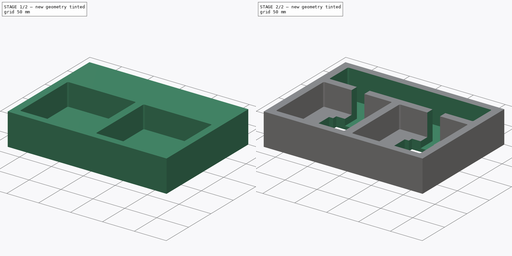
[diagram: build sequence overview — one tinted view per stage of 2, left to right]
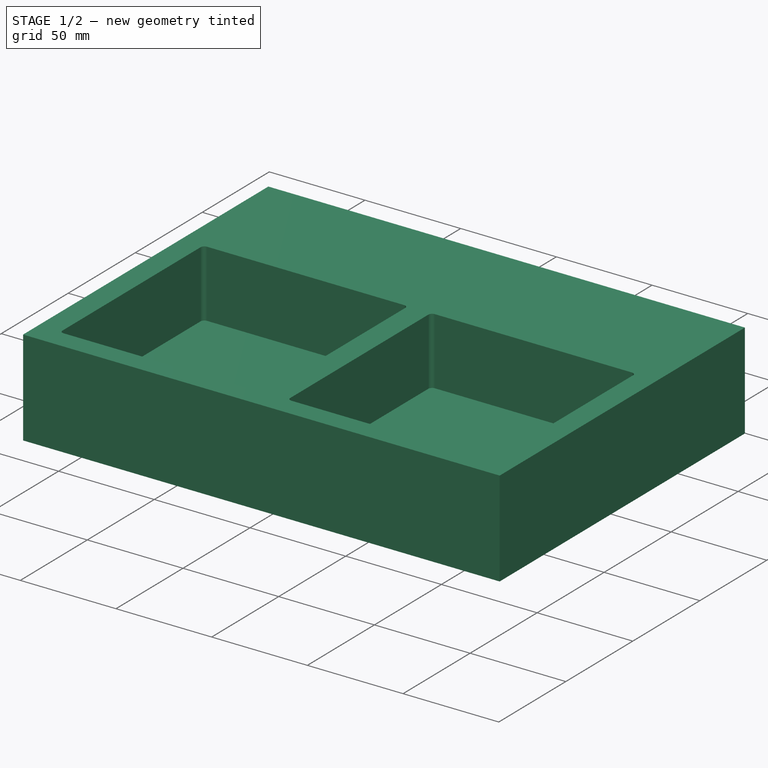
[diagram: stage 1 of 2 — iso view after this stage's code; geometry added in this stage tinted green]
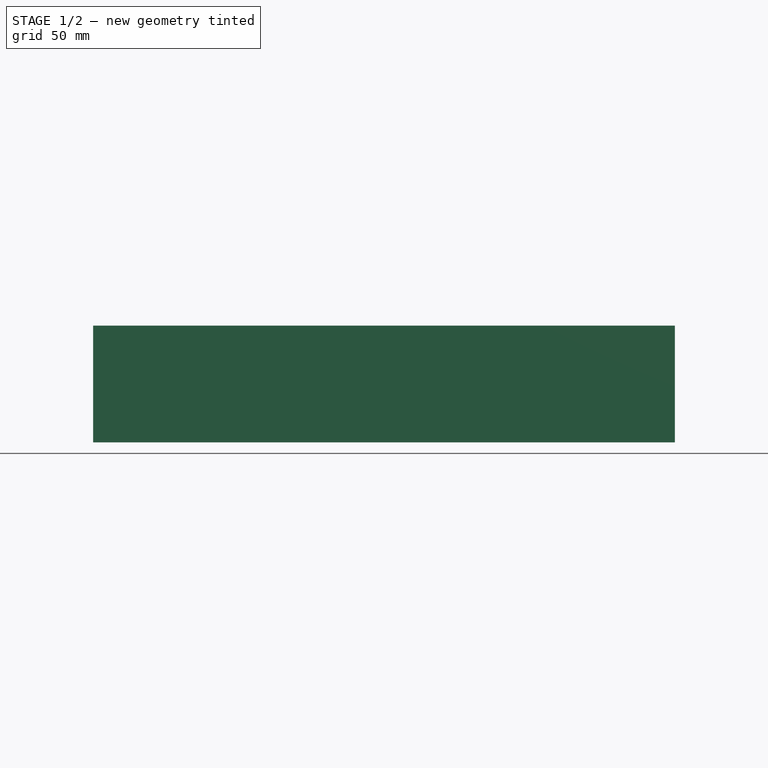
[diagram: stage 1 of 2 — front view after this stage's code; geometry added in this stage tinted green]
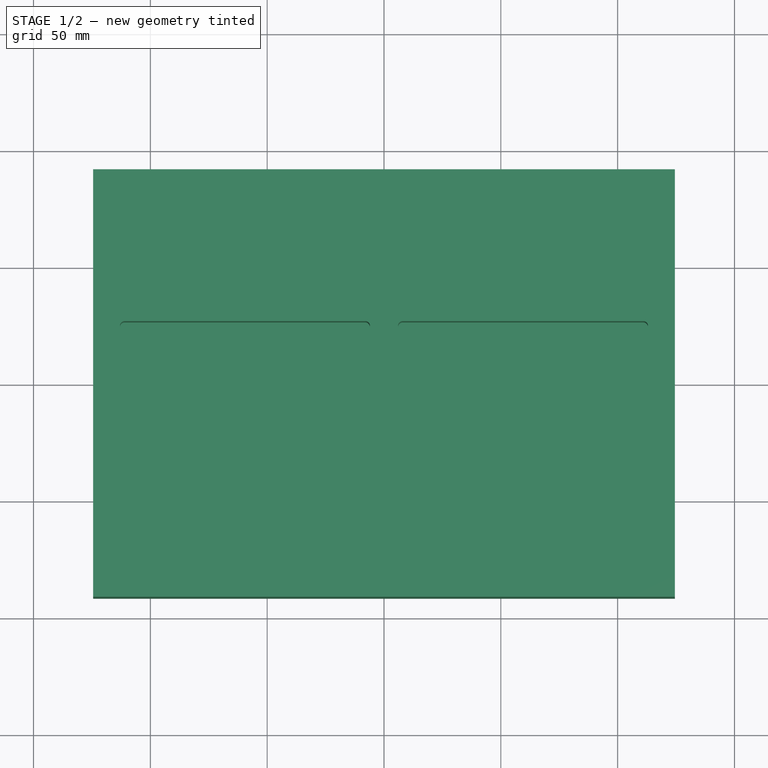
[diagram: stage 1 of 2 — top view after this stage's code; geometry added in this stage tinted green]
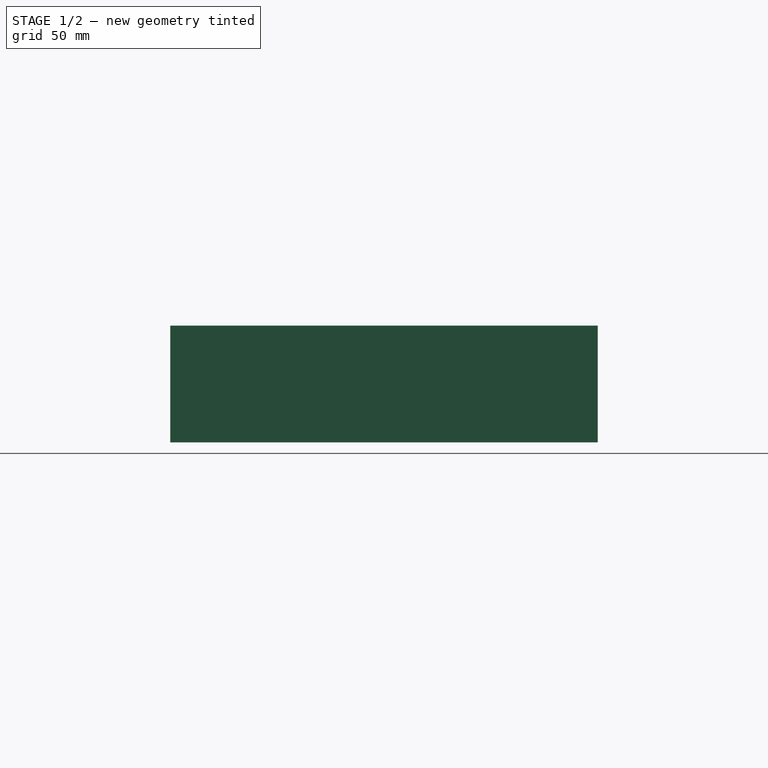
[diagram: stage 1 of 2 — right view after this stage's code; geometry added in this stage tinted green]
FCSTD DOCUMENT  (FreeCAD 0.20R29410 (Git))
Label: foam_insert
License: All rights reserved
LicenseURL: http://en.wikipedia.org/wiki/All_rights_reserved
objects: Sketcher::SketchObject×4, PartDesign::Pocket×3, PartDesign::Pad×1, PartDesign::Body×1
note: 13 computed .brp shape members not serialized (recipe doc carries the construction recipe); baked Part::Feature solids carry a one-line shape summary decoded from their .brp

FEATURE [Sketcher::SketchObject] Sketch
  FullyConstrained = true
  MapMode = 5
  Support = -> [XY_Plane]
  sketch-geometry (7):
    g0: LineSegment StartX=-124.5 StartY=91.5 StartZ=0 EndX=124.5 EndY=91.5 EndZ=0
    g1: LineSegment StartX=124.5 StartY=91.5 StartZ=0 EndX=124.5 EndY=-91.5 EndZ=0
    g2: LineSegment StartX=124.5 StartY=-91.5 StartZ=0 EndX=-124.5 EndY=-91.5 EndZ=0
    g3: LineSegment StartX=-124.5 StartY=-91.5 StartZ=0 EndX=-124.5 EndY=91.5 EndZ=0
    g4: LineSegment StartX=-124.5 StartY=91.5 StartZ=0 EndX=0 EndY=0 EndZ=0
    g5: LineSegment StartX=0 StartY=0 StartZ=0 EndX=124.5 EndY=91.5 EndZ=0
    g6: LineSegment StartX=0 StartY=0 StartZ=0 EndX=-124.5 EndY=-91.5 EndZ=0
  constraints (18):
    c: Coincident(g0,g1)
    c: Coincident(g1,g2)
    c: Coincident(g2,g3)
    c: Coincident(g3,g0)
    c: Horizontal(g0)
    c: Horizontal(g2)
    c: Vertical(g1)
    c: Vertical(g3)
    c: Coincident(g0,g4)
    c: Coincident(g4,g-1)
    c: Coincident(g4,g5)
    c: Coincident(g5,g0)
    c: Coincident(g4,g6)
    c: Coincident(g6,g2)
    c: Equal(g4,g6)
    c: Equal(g6,g5)
    c: DistanceX(g0,g0) = 249
    c: DistanceY(g3,g3) = 183
FEATURE [PartDesign::Pad] Pad
  Direction = (0,0,1)
  Length = 50
  Length2 = 10
  Profile = -> Sketch
  ReferenceAxis = -> Sketch [N_Axis]
  Reversed = true
  Type = 0
FEATURE [Sketcher::SketchObject] Sketch001
  FullyConstrained = true
  MapMode = 5
  Support = -> [XY_Plane]
  sketch-geometry (35):
    g0: LineSegment StartX=-111 StartY=26.5 StartZ=0 EndX=-8 EndY=26.5 EndZ=0
    g1: LineSegment StartX=-6 StartY=24.5 StartZ=0 EndX=-6 EndY=-78.5 EndZ=0
    g2: LineSegment StartX=-8 StartY=-80.5 StartZ=0 EndX=-111 EndY=-80.5 EndZ=0
    g3: LineSegment StartX=-113 StartY=-78.5 StartZ=0 EndX=-113 EndY=24.5 EndZ=0
    g4: LineSegment StartX=8 StartY=26.5 StartZ=0 EndX=111 EndY=26.5 EndZ=0
    g5: LineSegment StartX=113 StartY=24.5 StartZ=0 EndX=113 EndY=-78.5 EndZ=0
    g6: LineSegment StartX=111 StartY=-80.5 StartZ=0 EndX=8 EndY=-80.5 EndZ=0
    g7: LineSegment StartX=6 StartY=-78.5 StartZ=0 EndX=6 EndY=24.5 EndZ=0
    g8: ArcOfCircle CenterX=8 CenterY=24.5 CenterZ=0 NormalX=0 NormalY=0 NormalZ=1 AngleXU=0 Radius=2 StartAngle=1.5708 EndAngle=3.14159
    g9: ArcOfCircle CenterX=111 CenterY=24.5 CenterZ=0 NormalX=0 NormalY=0 NormalZ=1 AngleXU=0 Radius=2 StartAngle=0 EndAngle=1.5708
    g10: ArcOfCircle CenterX=111 CenterY=-78.5 CenterZ=0 NormalX=0 NormalY=0 NormalZ=1 AngleXU=0 Radius=2 StartAngle=4.71239 EndAngle=6.28319
    g11: ArcOfCircle CenterX=8 CenterY=-78.5 CenterZ=0 NormalX=0 NormalY=0 NormalZ=1 AngleXU=0 Radius=2 StartAngle=3.14159 EndAngle=4.71239
    g12: ArcOfCircle CenterX=-8 CenterY=-78.5 CenterZ=0 NormalX=0 NormalY=0 NormalZ=1 AngleXU=0 Radius=2 StartAngle=4.71239 EndAngle=6.28319
    g13: ArcOfCircle CenterX=-8 CenterY=24.5 CenterZ=0 NormalX=0 NormalY=0 NormalZ=1 AngleXU=0 Radius=2 StartAngle=2e-16 EndAngle=1.5708
    g14: ArcOfCircle CenterX=-111 CenterY=24.5 CenterZ=0 NormalX=0 NormalY=0 NormalZ=1 AngleXU=0 Radius=2 StartAngle=1.5708 EndAngle=3.14159
    g15: ArcOfCircle CenterX=-111 CenterY=-78.5 CenterZ=0 NormalX=0 NormalY=0 NormalZ=1 AngleXU=0 Radius=2 StartAngle=3.14159 EndAngle=4.71239
    g16: LineSegment StartX=-6 StartY=24.5 StartZ=0 EndX=0 EndY=0 EndZ=0
    g17: LineSegment StartX=0 StartY=0 StartZ=0 EndX=6 EndY=24.5 EndZ=0
    g18: LineSegment StartX=-6 StartY=-78.5 StartZ=0 EndX=0 EndY=0 EndZ=0
    g19: LineSegment StartX=0 StartY=0 StartZ=0 EndX=6 EndY=-78.5 EndZ=0
    g20: ArcOfCircle CenterX=-111 CenterY=78.5 CenterZ=0 NormalX=0 NormalY=0 NormalZ=1 AngleXU=0 Radius=2 StartAngle=1.5708 EndAngle=3.14159
    g21: LineSegment StartX=-111 StartY=80.5 StartZ=0 EndX=111 EndY=80.5 EndZ=0
    g22: ArcOfCircle CenterX=111 CenterY=78.5 CenterZ=0 NormalX=0 NormalY=0 NormalZ=1 AngleXU=0 Radius=2 StartAngle=3.5e-15 EndAngle=1.5708
    g23: LineSegment StartX=113 StartY=78.5 StartZ=0 EndX=113 EndY=40.5 EndZ=0
    g24: ArcOfCircle CenterX=111 CenterY=40.5 CenterZ=0 NormalX=0 NormalY=0 NormalZ=1 AngleXU=0 Radius=2 StartAngle=4.71239 EndAngle=6.28319
    g25: LineSegment StartX=111 StartY=38.5 StartZ=0 EndX=-111 EndY=38.5 EndZ=0
    g26: ArcOfCircle CenterX=-111 CenterY=40.5 CenterZ=0 NormalX=0 NormalY=0 NormalZ=1 AngleXU=0 Radius=2 StartAngle=3.14159 EndAngle=4.71239
    g27: LineSegment StartX=-113 StartY=40.5 StartZ=0 EndX=-113 EndY=78.5 EndZ=0
    g28: GeomPoint X=-113 Y=80.5 Z=0
    g29: GeomPoint X=113 Y=38.5 Z=0
    g30: LineSegment StartX=-113 StartY=40.5 StartZ=0 EndX=-113 EndY=24.5 EndZ=0
    g31: LineSegment StartX=113 StartY=40.5 StartZ=0 EndX=113 EndY=24.5 EndZ=0
    g32: LineSegment StartX=-8 StartY=-80.5 StartZ=0 EndX=8 EndY=-80.5 EndZ=0
    g33: LineSegment StartX=0 StartY=80.5 StartZ=0 EndX=0 EndY=0 EndZ=0
    g34: LineSegment StartX=0 StartY=-80.5 StartZ=0 EndX=0 EndY=0 EndZ=0
  constraints (84):
    c: Horizontal(g0)
    c: Horizontal(g2)
    c: Vertical(g1)
    c: Vertical(g3)
    c: Horizontal(g4)
    c: Horizontal(g6)
    c: Vertical(g5)
    c: Vertical(g7)
    c: Equal(g6,g7)
    c: Equal(g7,g2)
    c: Equal(g2,g3)
    c: Tangent(g4,g8) = 1.5708
    c: Tangent(g7,g8) = 1.5708
    c: Tangent(g4,g9) = 1.5708
    c: Tangent(g5,g9) = 1.5708
    c: Tangent(g5,g10) = 1.5708
    c: Tangent(g6,g10) = 1.5708
    c: Tangent(g6,g11) = 1.5708
    c: Tangent(g7,g11) = 1.5708
    c: Tangent(g1,g12) = 1.5708
    c: Tangent(g2,g12) = 1.5708
    c: Tangent(g0,g13) = 1.5708
    c: Tangent(g1,g13) = 1.5708
    c: Tangent(g0,g14) = 1.5708
    c: Tangent(g3,g14) = 1.5708
    c: Tangent(g2,g15) = 1.5708
    c: Tangent(g3,g15) = 1.5708
    c: Equal(g14,g13)
    c: Equal(g13,g12)
    c: Equal(g12,g15)
    c: Equal(g8,g11)
    c: Equal(g11,g10)
    c: Equal(g10,g9)
    c: Equal(g8,g13)
    c: Radius(g9) = 2
    c: DistanceY(g6,g4) = 107
    c: Coincident(g1,g16)
    c: Coincident(g16,g-1)
    c: Coincident(g16,g17)
    c: Coincident(g17,g7)
    c: Coincident(g1,g18)
    c: Coincident(g18,g16)
    c: Coincident(g18,g19)
    c: Coincident(g19,g7)
    c: Equal(g18,g19)
    c: Equal(g16,g17)
    c: Tangent(g20,g21) = 1.5708
    c: Tangent(g21,g22) = 1.5708
    c: Tangent(g22,g23) = 1.5708
    c: Tangent(g23,g24) = 1.5708
    c: Tangent(g24,g25) = 1.5708
    c: Tangent(g25,g26) = 1.5708
    c: Tangent(g26,g27) = 1.5708
    c: Tangent(g27,g20) = 1.5708
    c: Horizontal(g21)
    c: Horizontal(g25)
    c: Vertical(g23)
    c: Vertical(g27)
    c: Equal(g24,g26)
    c: PointOnObject(g28,g21)
    c: PointOnObject(g28,g27)
    c: PointOnObject(g29,g23)
    c: PointOnObject(g29,g25)
    c: Equal(g22,g20)
    c: Equal(g24,g9)
    c: Coincident(g30,g26)
    c: Coincident(g30,g3)
    c: Vertical(g30)
    c: Coincident(g31,g23)
    c: Coincident(g31,g5)
    c: Tangent(g31,g9)
    c: Coincident(g32,g2)
    c: Coincident(g32,g6)
    c: Equal(g32,g30)
    c: DistanceX(g1,g7) = 12
    c: PointOnObject(g33,g21)
    c: Coincident(g33,g16)
    c: PointOnObject(g34,g32)
    c: Coincident(g34,g16)
    c: Equal(g34,g33)
    c: Vertical(g34)
    c: Vertical(g33)
    c: DistanceY(g25,g20) = 42
    c: Equal(g20,g26)
FEATURE [PartDesign::Pocket] Pocket
  BaseFeature = -> Pad
  Direction = (0,0,-1)
  Length = 35
  Length2 = 5
  Profile = -> Sketch001
  ReferenceAxis = -> Sketch001 [N_Axis]
  Type = 0
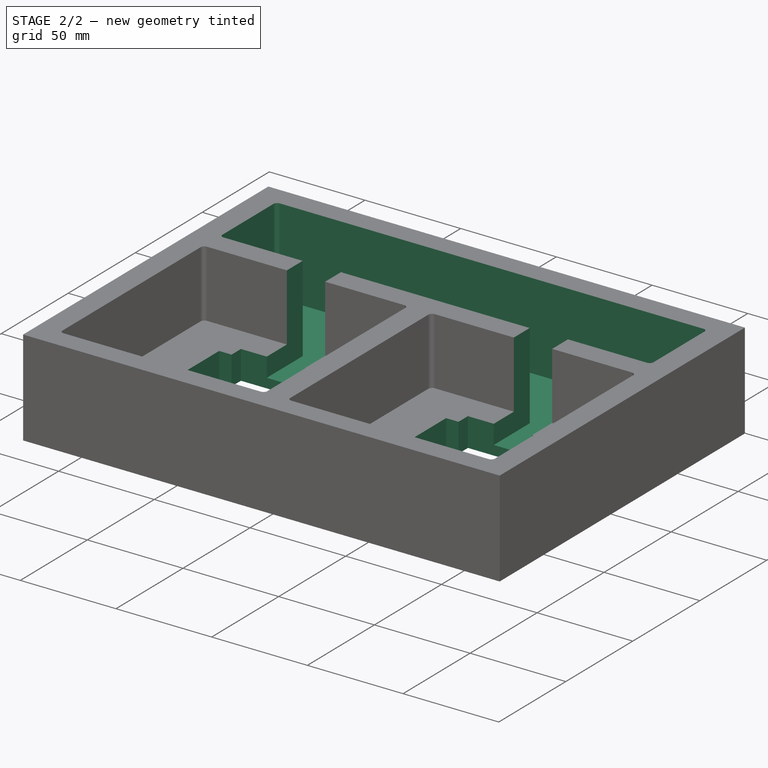
[diagram: stage 2 of 2 — iso view after this stage's code; geometry added in this stage tinted green]
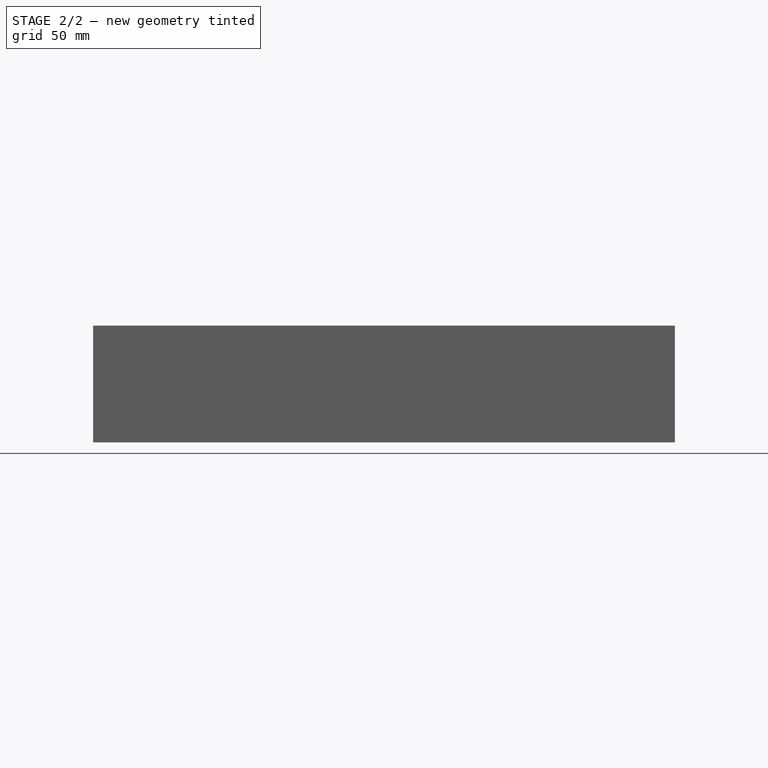
[diagram: stage 2 of 2 — front view after this stage's code; geometry added in this stage tinted green]
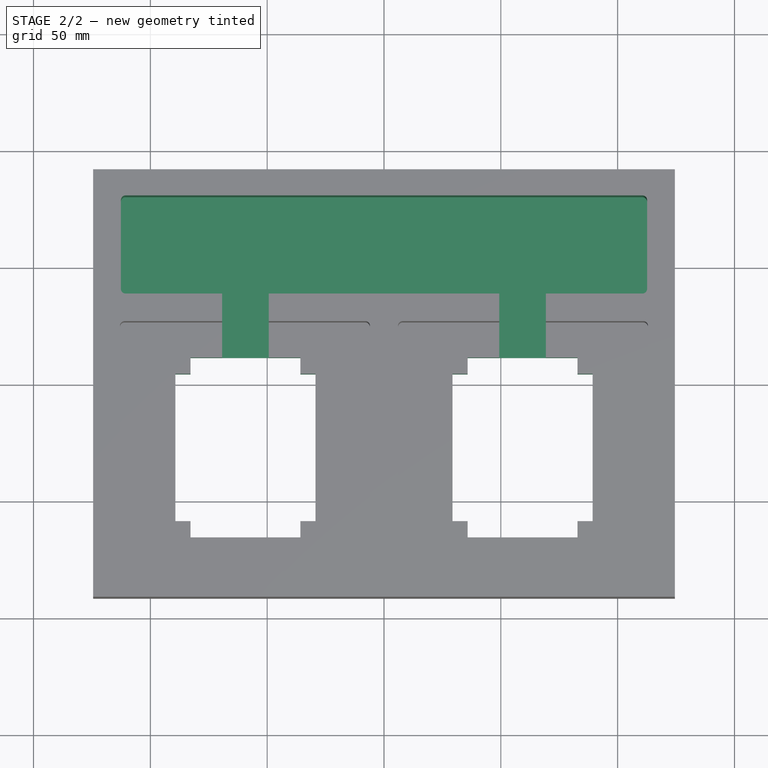
[diagram: stage 2 of 2 — top view after this stage's code; geometry added in this stage tinted green]
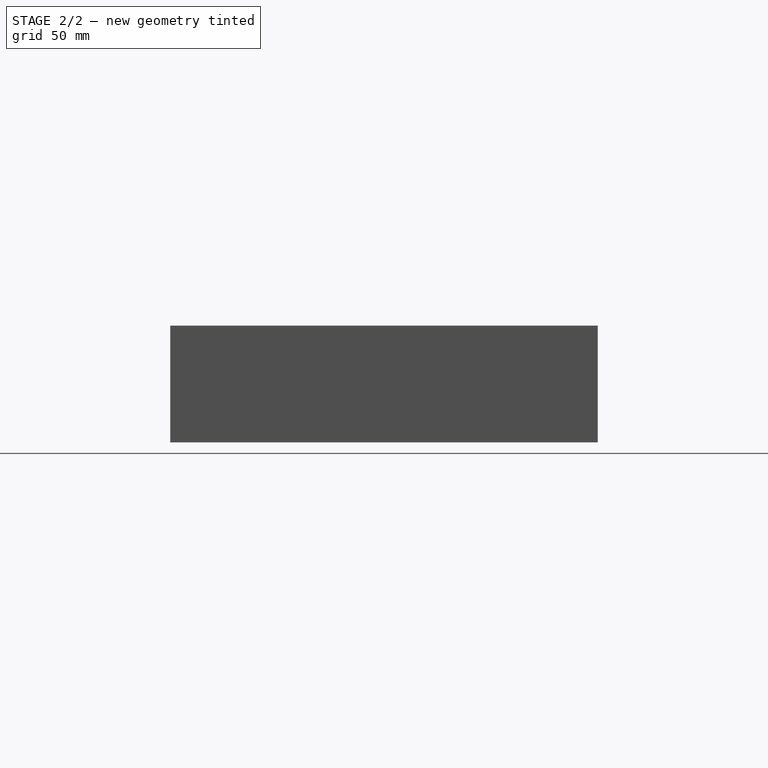
[diagram: stage 2 of 2 — right view after this stage's code; geometry added in this stage tinted green]
FEATURE [Sketcher::SketchObject] Sketch002
  FullyConstrained = true
  MapMode = 5
  Support = -> [XY_Plane]
  sketch-geometry (65):
    g0: LineSegment StartX=-110.6 StartY=26.3 StartZ=0 EndX=-8 EndY=26.3 EndZ=0
    g1: LineSegment StartX=-6 StartY=24.3 StartZ=0 EndX=-6 EndY=-78.3 EndZ=0
    g2: LineSegment StartX=-8 StartY=-80.3 StartZ=0 EndX=-110.6 EndY=-80.3 EndZ=0
    g3: LineSegment StartX=-112.6 StartY=-78.3 StartZ=0 EndX=-112.6 EndY=24.3 EndZ=0
    g4: LineSegment StartX=8 StartY=26.3 StartZ=0 EndX=110.6 EndY=26.3 EndZ=0
    g5: LineSegment StartX=112.6 StartY=24.3 StartZ=0 EndX=112.6 EndY=-78.3 EndZ=0
    g6: LineSegment StartX=110.6 StartY=-80.3 StartZ=0 EndX=8 EndY=-80.3 EndZ=0
    g7: LineSegment StartX=6 StartY=-78.3 StartZ=0 EndX=6 EndY=24.3 EndZ=0
    g8: ArcOfCircle CenterX=8 CenterY=24.3 CenterZ=0 NormalX=0 NormalY=0 NormalZ=1 AngleXU=0 Radius=2 StartAngle=1.5708 EndAngle=3.14159
    g9: ArcOfCircle CenterX=110.6 CenterY=24.3 CenterZ=0 NormalX=0 NormalY=0 NormalZ=1 AngleXU=0 Radius=2 StartAngle=5e-16 EndAngle=1.5708
    g10: ArcOfCircle CenterX=110.6 CenterY=-78.3 CenterZ=0 NormalX=0 NormalY=0 NormalZ=1 AngleXU=0 Radius=2 StartAngle=4.71239 EndAngle=6.28319
    g11: ArcOfCircle CenterX=8 CenterY=-78.3 CenterZ=0 NormalX=0 NormalY=0 NormalZ=1 AngleXU=0 Radius=2 StartAngle=3.14159 EndAngle=4.71239
    g12: ArcOfCircle CenterX=-8 CenterY=-78.3 CenterZ=0 NormalX=0 NormalY=0 NormalZ=1 AngleXU=0 Radius=2 StartAngle=4.71239 EndAngle=6.28319
    g13: ArcOfCircle CenterX=-8 CenterY=24.3 CenterZ=0 NormalX=0 NormalY=0 NormalZ=1 AngleXU=0 Radius=2 StartAngle=2e-16 EndAngle=1.5708
    g14: ArcOfCircle CenterX=-110.6 CenterY=24.3 CenterZ=0 NormalX=0 NormalY=0 NormalZ=1 AngleXU=0 Radius=2 StartAngle=1.5708 EndAngle=3.14159
    g15: ArcOfCircle CenterX=-110.6 CenterY=-78.3 CenterZ=0 NormalX=0 NormalY=0 NormalZ=1 AngleXU=0 Radius=2 StartAngle=3.14159 EndAngle=4.71239
    g16: LineSegment StartX=-6 StartY=24.3 StartZ=0 EndX=0 EndY=0 EndZ=0
    g17: LineSegment StartX=0 StartY=0 StartZ=0 EndX=6 EndY=24.3 EndZ=0
    g18: LineSegment StartX=-6 StartY=-78.3 StartZ=0 EndX=0 EndY=0 EndZ=0
    g19: LineSegment StartX=0 StartY=0 StartZ=0 EndX=6 EndY=-78.3 EndZ=0
    g20: ArcOfCircle CenterX=-110.6 CenterY=78.3 CenterZ=0 NormalX=0 NormalY=0 NormalZ=1 AngleXU=0 Radius=2 StartAngle=1.5708 EndAngle=3.14159
    g21: LineSegment StartX=-110.6 StartY=80.3 StartZ=0 EndX=110.6 EndY=80.3 EndZ=0
    g22: ArcOfCircle CenterX=110.6 CenterY=78.3 CenterZ=0 NormalX=0 NormalY=0 NormalZ=1 AngleXU=0 Radius=2 StartAngle=2.3e-15 EndAngle=1.5708
    g23: LineSegment StartX=112.6 StartY=78.3 StartZ=0 EndX=112.6 EndY=40.3 EndZ=0
    g24: ArcOfCircle CenterX=110.6 CenterY=40.3 CenterZ=0 NormalX=0 NormalY=0 NormalZ=1 AngleXU=0 Radius=2 StartAngle=4.71239 EndAngle=6.28319
    g25: LineSegment StartX=110.6 StartY=38.3 StartZ=0 EndX=-110.6 EndY=38.3 EndZ=0
    g26: ArcOfCircle CenterX=-110.6 CenterY=40.3 CenterZ=0 NormalX=0 NormalY=0 NormalZ=1 AngleXU=0 Radius=2 StartAngle=3.14159 EndAngle=4.71239
    g27: LineSegment StartX=-112.6 StartY=40.3 StartZ=0 EndX=-112.6 EndY=78.3 EndZ=0
    g28: GeomPoint X=-112.6 Y=80.3 Z=0
    g29: GeomPoint X=112.6 Y=38.3 Z=0
    g30: LineSegment StartX=-112.6 StartY=40.3 StartZ=0 EndX=-112.6 EndY=24.3 EndZ=0
    g31: LineSegment StartX=112.6 StartY=40.3 StartZ=0 EndX=112.6 EndY=24.3 EndZ=0
    g32: LineSegment StartX=-8 StartY=-80.3 StartZ=0 EndX=8 EndY=-80.3 EndZ=0
    g33: LineSegment StartX=0 StartY=80.3 StartZ=0 EndX=0 EndY=0 EndZ=0
    g34: LineSegment StartX=0 StartY=-80.3 StartZ=0 EndX=0 EndY=0 EndZ=0
    g35: LineSegment StartX=-82.8 StartY=4.5 StartZ=0 EndX=-89.3 EndY=4.5 EndZ=0
    g36: LineSegment StartX=-89.3 StartY=4.5 StartZ=0 EndX=-89.3 EndY=-58.5 EndZ=0
    g37: LineSegment StartX=-29.3 StartY=-58.5 StartZ=0 EndX=-29.3 EndY=4.5 EndZ=0
    g38: LineSegment StartX=-29.3 StartY=4.5 StartZ=0 EndX=-35.8 EndY=4.5 EndZ=0
    g39: LineSegment StartX=35.8 StartY=4.5 StartZ=0 EndX=29.3 EndY=4.5 EndZ=0
    g40: LineSegment StartX=29.3 StartY=4.5 StartZ=0 EndX=29.3 EndY=-58.5 EndZ=0
    g41: LineSegment StartX=89.3 StartY=-58.5 StartZ=0 EndX=89.3 EndY=4.5 EndZ=0
    g42: LineSegment StartX=89.3 StartY=4.5 StartZ=0 EndX=82.8 EndY=4.5 EndZ=0
    g43: LineSegment StartX=-29.3 StartY=4.5 StartZ=0 EndX=-8 EndY=24.3 EndZ=0
    g44: LineSegment StartX=-29.3 StartY=-58.5 StartZ=0 EndX=-8 EndY=-78.3 EndZ=0
    g45: LineSegment StartX=-89.3 StartY=-58.5 StartZ=0 EndX=-82.8 EndY=-58.5 EndZ=0
    g46: LineSegment StartX=-82.8 StartY=-58.5 StartZ=0 EndX=-82.8 EndY=-65.5 EndZ=0
    g47: LineSegment StartX=-82.8 StartY=-65.5 StartZ=0 EndX=-35.8 EndY=-65.5 EndZ=0
    g48: LineSegment StartX=-35.8 StartY=-65.5 StartZ=0 EndX=-35.8 EndY=-58.5 EndZ=0
    g49: LineSegment StartX=-35.8 StartY=-58.5 StartZ=0 EndX=-29.3 EndY=-58.5 EndZ=0
    g50: LineSegment StartX=29.3 StartY=-58.5 StartZ=0 EndX=35.8 EndY=-58.5 EndZ=0
    g51: LineSegment StartX=35.8 StartY=-58.5 StartZ=0 EndX=35.8 EndY=-65.5 EndZ=0
    g52: LineSegment StartX=35.8 StartY=-65.5 StartZ=0 EndX=82.8 EndY=-65.5 EndZ=0
    g53: LineSegment StartX=82.8 StartY=-65.5 StartZ=0 EndX=82.8 EndY=-58.5 EndZ=0
    g54: LineSegment StartX=82.8 StartY=-58.5 StartZ=0 EndX=89.3 EndY=-58.5 EndZ=0
    g55: LineSegment StartX=-82.8 StartY=4.5 StartZ=0 EndX=-82.8 EndY=11.5 EndZ=0
    g56: LineSegment StartX=-82.8 StartY=11.5 StartZ=0 EndX=-35.8 EndY=11.5 EndZ=0
    g57: LineSegment StartX=-35.8 StartY=11.5 StartZ=0 EndX=-35.8 EndY=4.5 EndZ=0
    g58: LineSegment StartX=35.8 StartY=4.5 StartZ=0 EndX=35.8 EndY=11.5 EndZ=0
    g59: LineSegment StartX=35.8 StartY=11.5 StartZ=0 EndX=82.8 EndY=11.5 EndZ=0
    g60: LineSegment StartX=82.8 StartY=11.5 StartZ=0 EndX=82.8 EndY=4.5 EndZ=0
    g61: LineSegment StartX=-110.6 StartY=24.3 StartZ=0 EndX=-89.3 EndY=4.5 EndZ=0
    g62: LineSegment StartX=8 StartY=-78.3 StartZ=0 EndX=29.3 EndY=-58.5 EndZ=0
    g63: LineSegment StartX=29.3 StartY=4.5 StartZ=0 EndX=8 EndY=24.3 EndZ=0
    g64: LineSegment StartX=89.3 StartY=4.5 StartZ=0 EndX=110.6 EndY=24.3 EndZ=0
  constraints (168):
    c: Horizontal(g0)
    c: Horizontal(g2)
    c: Vertical(g1)
    c: Vertical(g3)
    c: Horizontal(g4)
    c: Horizontal(g6)
    c: Vertical(g5)
    c: Vertical(g7)
    c: Equal(g6,g7)
    c: Equal(g7,g2)
    c: Equal(g2,g3)
    c: Tangent(g4,g8) = 1.5708
    c: Tangent(g7,g8) = 1.5708
    c: Tangent(g4,g9) = 1.5708
    c: Tangent(g5,g9) = 1.5708
    c: Tangent(g5,g10) = 1.5708
    c: Tangent(g6,g10) = 1.5708
    c: Tangent(g6,g11) = 1.5708
    c: Tangent(g7,g11) = 1.5708
    c: Tangent(g1,g12) = 1.5708
    c: Tangent(g2,g12) = 1.5708
    c: Tangent(g0,g13) = 1.5708
    c: Tangent(g1,g13) = 1.5708
    c: Tangent(g0,g14) = 1.5708
    c: Tangent(g3,g14) = 1.5708
    c: Tangent(g2,g15) = 1.5708
    c: Tangent(g3,g15) = 1.5708
    c: Equal(g14,g13)
    c: Equal(g13,g12)
    c: Equal(g12,g15)
    c: Equal(g8,g11)
    c: Equal(g11,g10)
    c: Equal(g10,g9)
    c: Equal(g8,g13)
    c: Radius(g9) = 2
    c: DistanceY(g6,g4) = 106.6
    c: Coincident(g1,g16)
    c: Coincident(g16,g-1)
    c: Coincident(g16,g17)
    c: Coincident(g17,g7)
    c: Coincident(g1,g18)
    c: Coincident(g18,g16)
    c: Coincident(g18,g19)
    c: Coincident(g19,g7)
    c: Equal(g18,g19)
    c: Equal(g16,g17)
    c: Tangent(g20,g21) = 1.5708
    c: Tangent(g21,g22) = 1.5708
    c: Tangent(g22,g23) = 1.5708
    c: Tangent(g23,g24) = 1.5708
    c: Tangent(g24,g25) = 1.5708
    c: Tangent(g25,g26) = 1.5708
    c: Tangent(g26,g27) = 1.5708
    c: Tangent(g27,g20) = 1.5708
    c: Horizontal(g21)
    c: Horizontal(g25)
    c: Vertical(g23)
    c: Vertical(g27)
    c: Equal(g24,g26)
    c: PointOnObject(g28,g21)
    c: PointOnObject(g28,g27)
    c: PointOnObject(g29,g23)
    c: PointOnObject(g29,g25)
    c: Equal(g22,g20)
    c: Equal(g24,g9)
    c: Coincident(g30,g26)
    c: Coincident(g30,g3)
    c: Vertical(g30)
    c: Coincident(g31,g23)
    c: Coincident(g31,g5)
    c: Tangent(g31,g9)
    c: Coincident(g32,g2)
    c: Coincident(g32,g6)
    c: Equal(g32,g30)
    c: DistanceX(g1,g7) = 12
    c: PointOnObject(g33,g21)
    c: Coincident(g33,g16)
    c: PointOnObject(g34,g32)
    c: Coincident(g34,g16)
    c: Equal(g34,g33)
    c: Vertical(g34)
    c: Vertical(g33)
    c: DistanceY(g25,g20) = 42
    c: Horizontal(g35)
    c: Coincident(g35,g36)
    c: Vertical(g36)
    c: Coincident(g36,g45)
    c: Coincident(g49,g37)
    c: Vertical(g37)
    c: Coincident(g37,g38)
    c: Horizontal(g38)
    c: Horizontal(g39)
    c: Coincident(g39,g40)
    c: Vertical(g40)
    c: Coincident(g40,g50)
    c: Coincident(g54,g41)
    c: Vertical(g41)
    c: Coincident(g41,g42)
    c: Horizontal(g42)
    c: DistanceY(g41,g41) = 63
    c: Equal(g37,g41)
    c: DistanceX(g50,g54) = 60
    c: Equal(g39,g42)
    c: Equal(g42,g35)
    c: Equal(g35,g38)
    c: Coincident(g43,g37)
    c: Coincident(g43,g13)
    c: Coincident(g44,g49)
    c: Coincident(g44,g12)
    c: Equal(g44,g43)
    c: Equal(g20,g26)
    c: Coincident(g45,g46)
    c: Horizontal(g45)
    c: Coincident(g46,g47)
    c: Coincident(g47,g48)
    c: Horizontal(g47)
    c: Coincident(g48,g49)
    c: Horizontal(g49)
    c: Coincident(g50,g51)
    c: Horizontal(g50)
    c: Coincident(g51,g52)
    c: Coincident(g52,g53)
    c: Horizontal(g52)
    c: Coincident(g53,g54)
    c: Horizontal(g54)
    c: Vertical(g46)
    c: Vertical(g48)
    c: Vertical(g51)
    c: Vertical(g53)
    c: Equal(g51,g46)
    c: Equal(g45,g49)
    c: Equal(g49,g50)
    c: Equal(g50,g54)
    c: Equal(g40,g41)
    c: Equal(g37,g36)
    c: Equal(g47,g52)
    c: DistanceX(g47,g47) = 47
    c: DistanceY(g46,g46) = 7
    c: Coincident(g35,g55)
    c: Vertical(g55)
    c: Coincident(g55,g56)
    c: Horizontal(g56)
    c: Coincident(g56,g57)
    c: Coincident(g57,g38)
    c: Coincident(g39,g58)
    c: Vertical(g58)
    c: Coincident(g58,g59)
    c: Horizontal(g59)
    c: Coincident(g59,g60)
    c: Coincident(g60,g42)
    c: Vertical(g60)
    c: Vertical(g57)
    c: Equal(g38,g49)
    c: Equal(g58,g57)
    c: Equal(g57,g48)
    c: Equal(g46,g55)
    c: Equal(g53,g51)
    c: Coincident(g61,g14)
    c: Coincident(g61,g35)
    c: Coincident(g62,g11)
    c: Coincident(g62,g40)
    c: Coincident(g63,g39)
    c: Coincident(g63,g8)
    c: Coincident(g64,g9)
    c: Coincident(g64,g41)
    c: Equal(g62,g63)
    c: Equal(g63,g64)
    c: Equal(g43,g61)
FEATURE [PartDesign::Pocket] Pocket001
  BaseFeature = -> Pocket
  Direction = (0,0,-1)
  Length = 50
  Length2 = 5
  Profile = -> Sketch002
  ReferenceAxis = -> Sketch002 [N_Axis]
  Type = 0
FEATURE [Sketcher::SketchObject] Sketch003
  FullyConstrained = true
  MapMode = 5
  Support = -> [XY_Plane]
  sketch-geometry (66):
    g0: LineSegment StartX=-110.6 StartY=26.3 StartZ=0 EndX=-8 EndY=26.3 EndZ=0
    g1: LineSegment StartX=-6 StartY=24.3 StartZ=0 EndX=-6 EndY=-78.3 EndZ=0
    g2: LineSegment StartX=-8 StartY=-80.3 StartZ=0 EndX=-110.6 EndY=-80.3 EndZ=0
    g3: LineSegment StartX=-112.6 StartY=-78.3 StartZ=0 EndX=-112.6 EndY=24.3 EndZ=0
    g4: LineSegment StartX=8 StartY=26.3 StartZ=0 EndX=110.6 EndY=26.3 EndZ=0
    g5: LineSegment StartX=112.6 StartY=24.3 StartZ=0 EndX=112.6 EndY=-78.3 EndZ=0
    g6: LineSegment StartX=110.6 StartY=-80.3 StartZ=0 EndX=8 EndY=-80.3 EndZ=0
    g7: LineSegment StartX=6 StartY=-78.3 StartZ=0 EndX=6 EndY=24.3 EndZ=0
    g8: ArcOfCircle CenterX=8 CenterY=24.3 CenterZ=0 NormalX=0 NormalY=0 NormalZ=1 AngleXU=0 Radius=2 StartAngle=1.5708 EndAngle=3.14159
    g9: ArcOfCircle CenterX=110.6 CenterY=24.3 CenterZ=0 NormalX=0 NormalY=0 NormalZ=1 AngleXU=0 Radius=2 StartAngle=0 EndAngle=1.5708
    g10: ArcOfCircle CenterX=110.6 CenterY=-78.3 CenterZ=0 NormalX=0 NormalY=0 NormalZ=1 AngleXU=0 Radius=2 StartAngle=4.71239 EndAngle=6.28319
    g11: ArcOfCircle CenterX=8 CenterY=-78.3 CenterZ=0 NormalX=0 NormalY=0 NormalZ=1 AngleXU=0 Radius=2 StartAngle=3.14159 EndAngle=4.71239
    g12: ArcOfCircle CenterX=-8 CenterY=-78.3 CenterZ=0 NormalX=0 NormalY=0 NormalZ=1 AngleXU=0 Radius=2 StartAngle=4.71239 EndAngle=6.28319
    g13: ArcOfCircle CenterX=-8 CenterY=24.3 CenterZ=0 NormalX=0 NormalY=0 NormalZ=1 AngleXU=0 Radius=2 StartAngle=-9e-16 EndAngle=1.5708
    g14: ArcOfCircle CenterX=-110.6 CenterY=24.3 CenterZ=0 NormalX=0 NormalY=0 NormalZ=1 AngleXU=0 Radius=2 StartAngle=1.5708 EndAngle=3.14159
    g15: ArcOfCircle CenterX=-110.6 CenterY=-78.3 CenterZ=0 NormalX=0 NormalY=0 NormalZ=1 AngleXU=0 Radius=2 StartAngle=3.14159 EndAngle=4.71239
    g16: LineSegment StartX=-6 StartY=24.3 StartZ=0 EndX=0 EndY=0 EndZ=0
    g17: LineSegment StartX=0 StartY=0 StartZ=0 EndX=6 EndY=24.3 EndZ=0
    g18: LineSegment StartX=-6 StartY=-78.3 StartZ=0 EndX=0 EndY=0 EndZ=0
    g19: LineSegment StartX=0 StartY=0 StartZ=0 EndX=6 EndY=-78.3 EndZ=0
    g20: ArcOfCircle CenterX=-110.6 CenterY=78.3 CenterZ=0 NormalX=0 NormalY=0 NormalZ=1 AngleXU=0 Radius=2 StartAngle=1.5708 EndAngle=3.14159
    g21: LineSegment StartX=-110.6 StartY=80.3 StartZ=0 EndX=110.6 EndY=80.3 EndZ=0
    g22: ArcOfCircle CenterX=110.6 CenterY=78.3 CenterZ=0 NormalX=0 NormalY=0 NormalZ=1 AngleXU=0 Radius=2 StartAngle=2.5e-15 EndAngle=1.5708
    g23: LineSegment StartX=112.6 StartY=78.3 StartZ=0 EndX=112.6 EndY=40.3 EndZ=0
    g24: ArcOfCircle CenterX=110.6 CenterY=40.3 CenterZ=0 NormalX=0 NormalY=0 NormalZ=1 AngleXU=0 Radius=2 StartAngle=4.71239 EndAngle=6.28319
    g25: LineSegment StartX=110.6 StartY=38.3 StartZ=0 EndX=-110.6 EndY=38.3 EndZ=0
    g26: ArcOfCircle CenterX=-110.6 CenterY=40.3 CenterZ=0 NormalX=0 NormalY=0 NormalZ=1 AngleXU=0 Radius=2 StartAngle=3.14159 EndAngle=4.71239
    g27: LineSegment StartX=-112.6 StartY=40.3 StartZ=0 EndX=-112.6 EndY=78.3 EndZ=0
    g28: GeomPoint X=-112.6 Y=80.3 Z=0
    g29: GeomPoint X=112.6 Y=38.3 Z=0
    g30: LineSegment StartX=-112.6 StartY=40.3 StartZ=0 EndX=-112.6 EndY=24.3 EndZ=0
    g31: LineSegment StartX=112.6 StartY=40.3 StartZ=0 EndX=112.6 EndY=24.3 EndZ=0
    g32: LineSegment StartX=-8 StartY=-80.3 StartZ=0 EndX=8 EndY=-80.3 EndZ=0
    g33: LineSegment StartX=0 StartY=80.3 StartZ=0 EndX=0 EndY=0 EndZ=0
    g34: LineSegment StartX=0 StartY=-80.3 StartZ=0 EndX=0 EndY=0 EndZ=0
    g35: LineSegment StartX=-110.6 StartY=38.3 StartZ=0 EndX=-69.3 EndY=38.3 EndZ=0
    g36: LineSegment StartX=-69.3 StartY=38.3 StartZ=0 EndX=-69.3 EndY=4.5 EndZ=0
    g37: LineSegment StartX=-69.3 StartY=4.5 StartZ=0 EndX=-89.3 EndY=4.5 EndZ=0
    g38: LineSegment StartX=-89.3 StartY=4.5 StartZ=0 EndX=-89.3 EndY=-58.5 EndZ=0
    g39: LineSegment StartX=-29.3 StartY=-58.5 StartZ=0 EndX=-29.3 EndY=4.5 EndZ=0
    g40: LineSegment StartX=-29.3 StartY=4.5 StartZ=0 EndX=-49.3 EndY=4.5 EndZ=0
    g41: LineSegment StartX=-49.3 StartY=4.5 StartZ=0 EndX=-49.3 EndY=38.3 EndZ=0
    g42: LineSegment StartX=-49.3 StartY=38.3 StartZ=0 EndX=49.3 EndY=38.3 EndZ=0
    g43: LineSegment StartX=49.3 StartY=38.3 StartZ=0 EndX=49.3 EndY=4.5 EndZ=0
    g44: LineSegment StartX=49.3 StartY=4.5 StartZ=0 EndX=29.3 EndY=4.5 EndZ=0
    g45: LineSegment StartX=29.3 StartY=4.5 StartZ=0 EndX=29.3 EndY=-58.5 EndZ=0
    g46: LineSegment StartX=89.3 StartY=-58.5 StartZ=0 EndX=89.3 EndY=4.5 EndZ=0
    g47: LineSegment StartX=89.3 StartY=4.5 StartZ=0 EndX=69.3 EndY=4.5 EndZ=0
    g48: LineSegment StartX=69.3 StartY=4.5 StartZ=0 EndX=69.3 EndY=38.3 EndZ=0
    g49: LineSegment StartX=69.3 StartY=38.3 StartZ=0 EndX=110.6 EndY=38.3 EndZ=0
    g50: LineSegment StartX=-110.6 StartY=26.3 StartZ=0 EndX=-69.3 EndY=38.3 EndZ=0
    g51: LineSegment StartX=-49.3 StartY=38.3 StartZ=0 EndX=-8 EndY=26.3 EndZ=0
    g52: LineSegment StartX=8 StartY=26.3 StartZ=0 EndX=49.3 EndY=38.3 EndZ=0
    g53: LineSegment StartX=69.3 StartY=38.3 StartZ=0 EndX=110.6 EndY=26.3 EndZ=0
    g54: LineSegment StartX=-29.3 StartY=4.5 StartZ=0 EndX=-8 EndY=24.3 EndZ=0
    g55: LineSegment StartX=-29.3 StartY=-58.5 StartZ=0 EndX=-8 EndY=-78.3 EndZ=0
    g56: LineSegment StartX=-89.3 StartY=-58.5 StartZ=0 EndX=-82.8 EndY=-58.5 EndZ=0
    g57: LineSegment StartX=-82.8 StartY=-58.5 StartZ=0 EndX=-82.8 EndY=-65.5 EndZ=0
    g58: LineSegment StartX=-82.8 StartY=-65.5 StartZ=0 EndX=-35.8 EndY=-65.5 EndZ=0
    g59: LineSegment StartX=-35.8 StartY=-65.5 StartZ=0 EndX=-35.8 EndY=-58.5 EndZ=0
    g60: LineSegment StartX=-35.8 StartY=-58.5 StartZ=0 EndX=-29.3 EndY=-58.5 EndZ=0
    g61: LineSegment StartX=29.3 StartY=-58.5 StartZ=0 EndX=35.8 EndY=-58.5 EndZ=0
    g62: LineSegment StartX=35.8 StartY=-58.5 StartZ=0 EndX=35.8 EndY=-65.5 EndZ=0
    g63: LineSegment StartX=35.8 StartY=-65.5 StartZ=0 EndX=82.8 EndY=-65.5 EndZ=0
    g64: LineSegment StartX=82.8 StartY=-65.5 StartZ=0 EndX=82.8 EndY=-58.5 EndZ=0
    g65: LineSegment StartX=82.8 StartY=-58.5 StartZ=0 EndX=89.3 EndY=-58.5 EndZ=0
  constraints (168):
    c: Horizontal(g0)
    c: Horizontal(g2)
    c: Vertical(g1)
    c: Vertical(g3)
    c: Horizontal(g4)
    c: Horizontal(g6)
    c: Vertical(g5)
    c: Vertical(g7)
    c: Equal(g6,g7)
    c: Equal(g7,g2)
    c: Equal(g2,g3)
    c: Tangent(g4,g8) = 1.5708
    c: Tangent(g7,g8) = 1.5708
    c: Tangent(g4,g9) = 1.5708
    c: Tangent(g5,g9) = 1.5708
    c: Tangent(g5,g10) = 1.5708
    c: Tangent(g6,g10) = 1.5708
    c: Tangent(g6,g11) = 1.5708
    c: Tangent(g7,g11) = 1.5708
    c: Tangent(g1,g12) = 1.5708
    c: Tangent(g2,g12) = 1.5708
    c: Tangent(g0,g13) = 1.5708
    c: Tangent(g1,g13) = 1.5708
    c: Tangent(g0,g14) = 1.5708
    c: Tangent(g3,g14) = 1.5708
    c: Tangent(g2,g15) = 1.5708
    c: Tangent(g3,g15) = 1.5708
    c: Equal(g14,g13)
    c: Equal(g13,g12)
    c: Equal(g12,g15)
    c: Equal(g8,g11)
    c: Equal(g11,g10)
    c: Equal(g10,g9)
    c: Equal(g8,g13)
    c: Radius(g9) = 2
    c: DistanceY(g6,g4) = 106.6
    c: Coincident(g1,g16)
    c: Coincident(g16,g-1)
    c: Coincident(g16,g17)
    c: Coincident(g17,g7)
    c: Coincident(g1,g18)
    c: Coincident(g18,g16)
    c: Coincident(g18,g19)
    c: Coincident(g19,g7)
    c: Equal(g18,g19)
    c: Equal(g16,g17)
    c: Tangent(g20,g21) = 1.5708
    c: Tangent(g21,g22) = 1.5708
    c: Tangent(g22,g23) = 1.5708
    c: Tangent(g23,g24) = 1.5708
    c: Tangent(g24,g25) = 1.5708
    c: Tangent(g25,g26) = 1.5708
    c: Tangent(g26,g27) = 1.5708
    c: Tangent(g27,g20) = 1.5708
    c: Horizontal(g21)
    c: Horizontal(g25)
    c: Vertical(g23)
    c: Vertical(g27)
    c: Equal(g24,g26)
    c: PointOnObject(g28,g21)
    c: PointOnObject(g28,g27)
    c: PointOnObject(g29,g23)
    c: PointOnObject(g29,g25)
    c: Equal(g22,g20)
    c: Equal(g24,g9)
    c: Coincident(g30,g26)
    c: Coincident(g30,g3)
    c: Vertical(g30)
    c: Coincident(g31,g23)
    c: Coincident(g31,g5)
    c: Tangent(g31,g9)
    c: Coincident(g32,g2)
    c: Coincident(g32,g6)
    c: Equal(g32,g30)
    c: DistanceX(g1,g7) = 12
    c: PointOnObject(g33,g21)
    c: Coincident(g33,g16)
    c: PointOnObject(g34,g32)
    c: Coincident(g34,g16)
    c: Equal(g34,g33)
    c: Vertical(g34)
    c: Vertical(g33)
    c: DistanceY(g25,g20) = 42
    c: Tangent(g26,g35) = -1.5708
    c: Coincident(g35,g36)
    c: Vertical(g36)
    c: Coincident(g36,g37)
    c: Horizontal(g37)
    c: Coincident(g37,g38)
    c: Vertical(g38)
    c: Coincident(g38,g56)
    c: Coincident(g60,g39)
    c: Vertical(g39)
    c: Coincident(g39,g40)
    c: Horizontal(g40)
    c: Coincident(g40,g41)
    c: PointOnObject(g41,g25)
    c: Vertical(g41)
    c: Coincident(g41,g42)
    c: Coincident(g42,g43)
    c: Vertical(g43)
    c: Coincident(g43,g44)
    c: Horizontal(g44)
    c: Coincident(g44,g45)
    c: Vertical(g45)
    c: Coincident(g45,g61)
    c: Coincident(g65,g46)
    c: Vertical(g46)
    c: Coincident(g46,g47)
    c: Horizontal(g47)
    c: Coincident(g47,g48)
    c: Vertical(g48)
    c: Coincident(g48,g49)
    c: Tangent(g49,g24) = -1.5708
    c: PointOnObject(g42,g25)
    c: DistanceY(g46,g46) = 63
    c: Equal(g48,g43)
    c: Equal(g36,g41)
    c: Equal(g41,g43)
    c: Equal(g39,g46)
    c: DistanceX(g61,g65) = 60
    c: Equal(g44,g47)
    c: Equal(g47,g37)
    c: Equal(g37,g40)
    c: DistanceX(g35,g41) = 20
    c: Coincident(g50,g0)
    c: Coincident(g50,g35)
    c: Coincident(g51,g41)
    c: Coincident(g51,g0)
    c: Coincident(g52,g4)
    c: Coincident(g52,g42)
    c: Coincident(g53,g48)
    c: Coincident(g53,g4)
    c: Equal(g51,g50)
    c: Equal(g52,g53)
    c: Coincident(g54,g39)
    c: Coincident(g54,g13)
    c: Coincident(g55,g60)
    c: Coincident(g55,g12)
    c: Equal(g55,g54)
    c: Equal(g20,g26)
    c: Coincident(g56,g57)
    c: Horizontal(g56)
    c: Coincident(g57,g58)
    c: Coincident(g58,g59)
    c: Horizontal(g58)
    c: Coincident(g59,g60)
    c: Horizontal(g60)
    c: Coincident(g61,g62)
    c: Horizontal(g61)
    c: Coincident(g62,g63)
    c: Coincident(g63,g64)
    c: Horizontal(g63)
    c: Coincident(g64,g65)
    c: Horizontal(g65)
    c: Vertical(g57)
    c: Vertical(g59)
    c: Vertical(g62)
    c: Vertical(g64)
    c: Equal(g62,g57)
    c: Equal(g56,g60)
    c: Equal(g60,g61)
    c: Equal(g61,g65)
    c: Equal(g45,g46)
    c: Equal(g39,g38)
    c: Equal(g58,g63)
    c: DistanceX(g58,g58) = 47
    c: DistanceY(g57,g57) = 7
FEATURE [PartDesign::Pocket] Pocket002
  BaseFeature = -> Pocket001
  Direction = (0,0,-1)
  Length = 45
  Length2 = 5
  Profile = -> Sketch003
  ReferenceAxis = -> Sketch003 [N_Axis]
  Refine = true
  Type = 0
FEATURE [PartDesign::Body] Body  label="smaller"
  Group = -> [Sketch,Pad,Sketch001,Pocket,Sketch002,Pocket001,Sketch003,Pocket002]
  Origin = -> Origin
  Tip = -> Pocket002
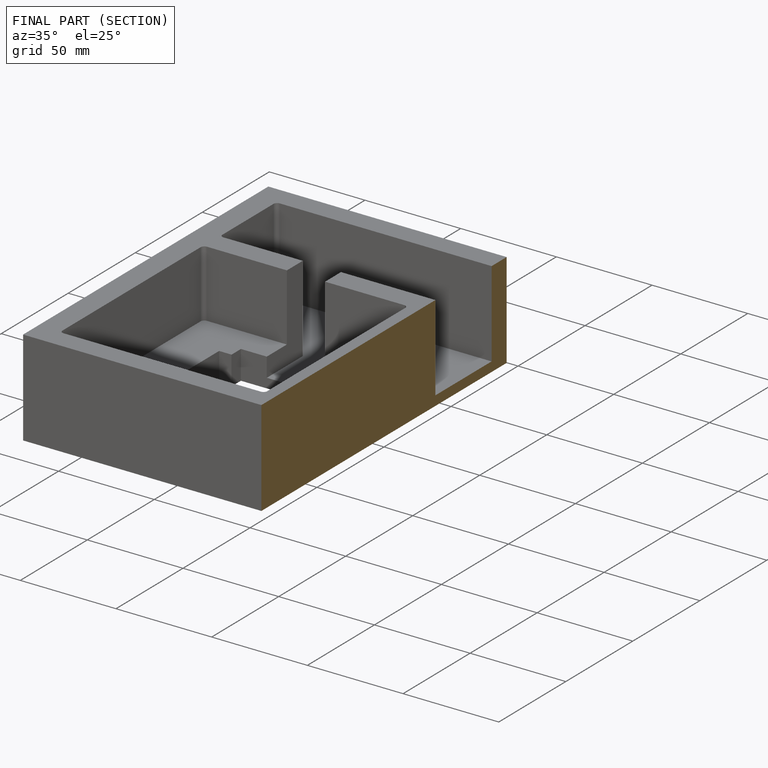
[diagram: finished part — half-section view (interior)]
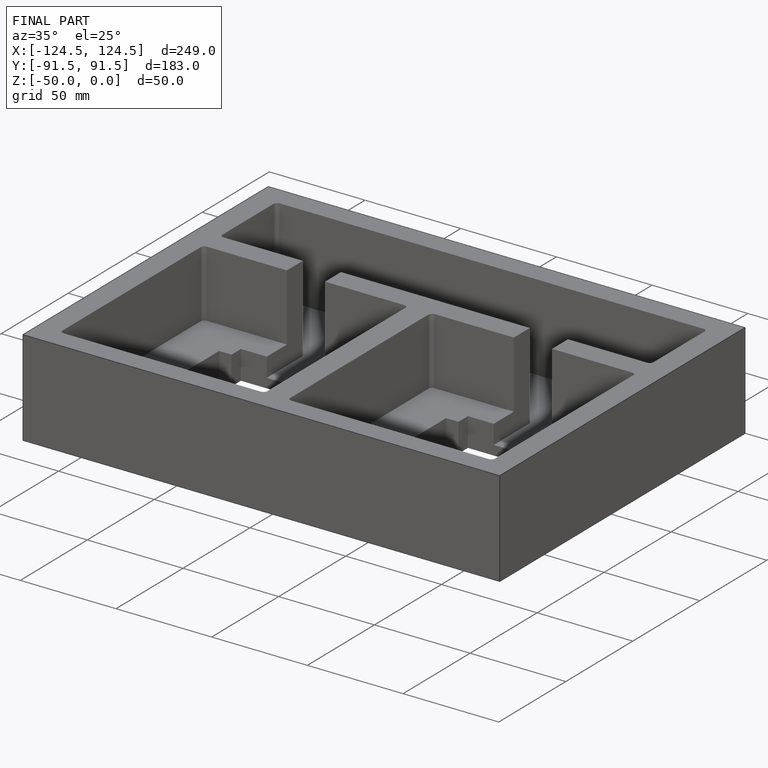
[diagram: finished part — iso view with bounding-box wireframe]
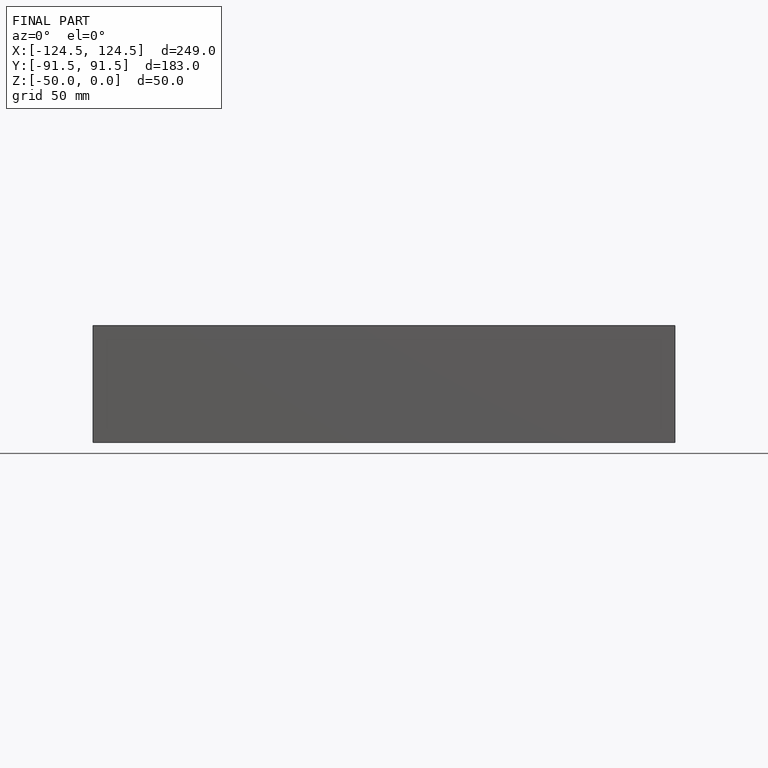
[diagram: finished part — front view with bounding-box wireframe]
